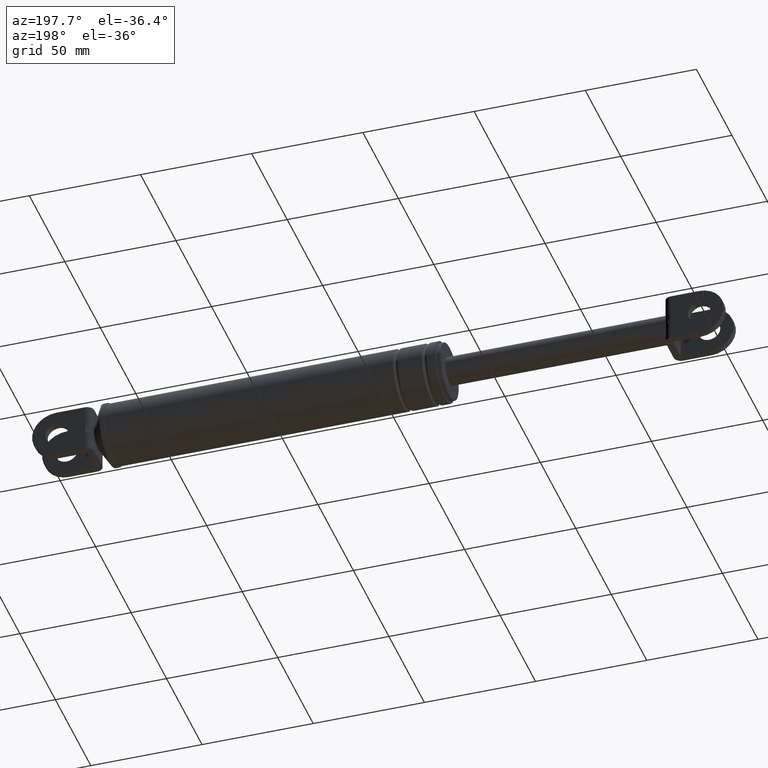
[diagram: clean part render]
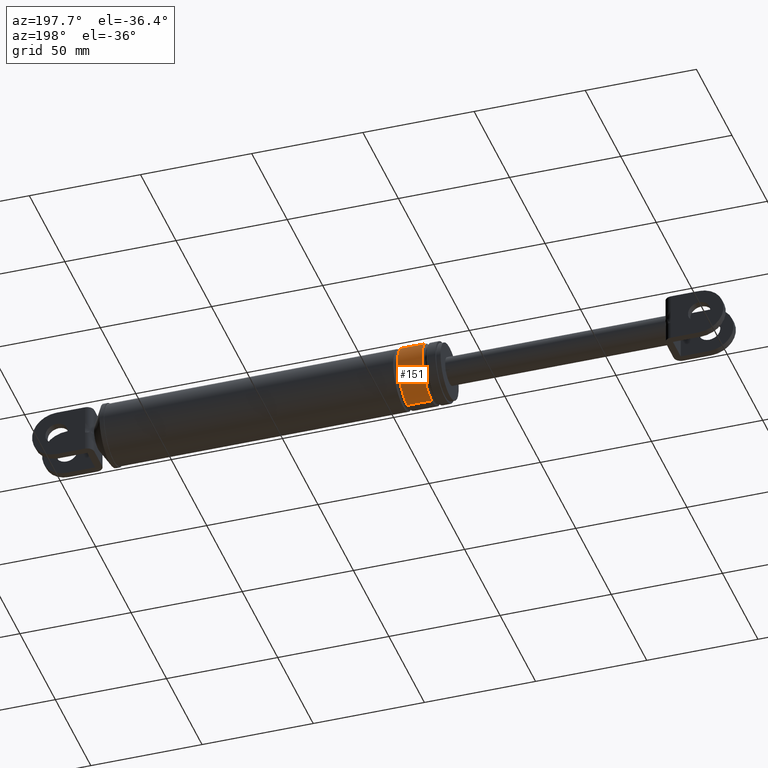
[diagram: same view with one face highlighted and labeled with its STEP entity id]
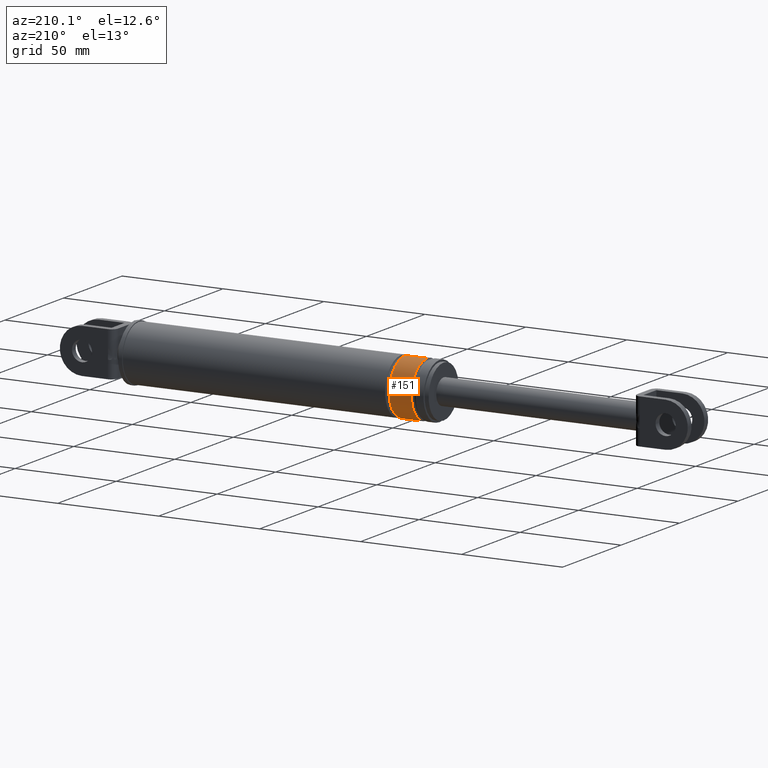
[diagram: same view with one face highlighted and labeled with its STEP entity id]
A machine part, auxiliary view. The second image highlights one B-rep face of the part: STEP entity #151.
A second angle (auxiliary view) of the same face is appended — the face is thin or edge-on in the first view.
In plain terms, the highlighted cylindrical surface (edge-blend (fillet) strip) has radius 13.7 mm, axis along (1, 0, 0).
Its self-contained STEP definition (entity closure, byte-faithful):
#151=ADVANCED_FACE('',(#573),#572,.T.);
#572=CYLINDRICAL_SURFACE('',#1218,1.37000000000E+001);
#573=FACE_OUTER_BOUND('',#1219,.T.);
#1215=CARTESIAN_POINT('',(0.00000000000E+000,0.00000000000E+000,1.91319381208E+002));
#1216=DIRECTION('',(1.00000000000E+000,-0.00000000000E+000,-0.00000000000E+000));
#1217=DIRECTION('',(0.00000000000E+000,1.22464679915E-016,1.00000000000E+000));
#1218=AXIS2_PLACEMENT_3D('',#1215,#1216,#1217);
#1219=EDGE_LOOP('',(#1580,#1581,#1582,#1583));
#1580=ORIENTED_EDGE('',*,*,#1782,.F.);
#1581=ORIENTED_EDGE('',*,*,#1800,.T.);
#1582=ORIENTED_EDGE('',*,*,#1788,.T.);
#1583=ORIENTED_EDGE('',*,*,#1801,.F.);
#1782=EDGE_CURVE('',#2358,#2359,#2360,.T.);
#1788=EDGE_CURVE('',#2399,#2392,#2400,.T.);
#1800=EDGE_CURVE('',#2358,#2399,#2474,.T.);
#1801=EDGE_CURVE('',#2359,#2392,#2480,.T.);
#2358=VERTEX_POINT('',#3214);
#2359=VERTEX_POINT('',#3215);
#2360=CIRCLE('',#3219,1.37000000000E+001);
#2392=VERTEX_POINT('',#3242);
#2399=VERTEX_POINT('',#3248);
#2400=CIRCLE('',#3252,1.37000000000E+001);
#2474=(BOUNDED_CURVE() B_SPLINE_CURVE(1,(#3290,#3291),.UNSPECIFIED.,.F.,.F.) B_SPLINE_CURVE_WITH_KNOTS((2,2),(8.33333343261E-002,9.16666667006E-001),.UNSPECIFIED.) CURVE() GEOMETRIC_REPRESENTATION_ITEM() RATIONAL_B_SPLINE_CURVE((1.00000000000E+000,1.00000000000E+000)) REPRESENTATION_ITEM('') );
#2480=(BOUNDED_CURVE() B_SPLINE_CURVE(1,(#3292,#3293),.UNSPECIFIED.,.F.,.F.) B_SPLINE_CURVE_WITH_KNOTS((2,2),(8.33333333333E-002,9.16666666667E-001),.UNSPECIFIED.) CURVE() GEOMETRIC_REPRESENTATION_ITEM() RATIONAL_B_SPLINE_CURVE((7.50000000000E-001,7.50000000000E-001)) REPRESENTATION_ITEM('') );
#3214=CARTESIAN_POINT('',(1.82838615558E+002,0.00000000000E+000,2.05019381208E+002));
#3215=CARTESIAN_POINT('',(1.82838615558E+002,0.00000000000E+000,1.77619381208E+002));
#3216=CARTESIAN_POINT('',(1.82838615558E+002,0.00000000000E+000,1.91319381208E+002));
#3217=DIRECTION('',(-1.00000000000E+000,0.00000000000E+000,0.00000000000E+000));
#3218=DIRECTION('',(0.00000000000E+000,-1.22460635382E-016,1.00000000000E+000));
#3219=AXIS2_PLACEMENT_3D('',#3216,#3217,#3218);
#3242=CARTESIAN_POINT('',(1.93838615558E+002,0.00000000000E+000,1.77619381208E+002));
#3248=CARTESIAN_POINT('',(1.93838615558E+002,0.00000000000E+000,2.05019381208E+002));
#3249=CARTESIAN_POINT('',(1.93838615558E+002,0.00000000000E+000,1.91319381208E+002));
#3250=DIRECTION('',(-1.00000000000E+000,0.00000000000E+000,0.00000000000E+000));
#3251=DIRECTION('',(0.00000000000E+000,-1.22460635382E-016,1.00000000000E+000));
#3252=AXIS2_PLACEMENT_3D('',#3249,#3250,#3251);
#3290=CARTESIAN_POINT('',(1.82838615571E+002,1.67776611483E-015,2.05019381208E+002));
#3291=CARTESIAN_POINT('',(1.93838615562E+002,1.67776611483E-015,2.05019381208E+002));
#3292=CARTESIAN_POINT('',(1.82838615558E+002,-5.92118946467E-016,1.77619381208E+002));
#3293=CARTESIAN_POINT('',(1.93838615558E+002,-5.92118946467E-016,1.77619381208E+002));